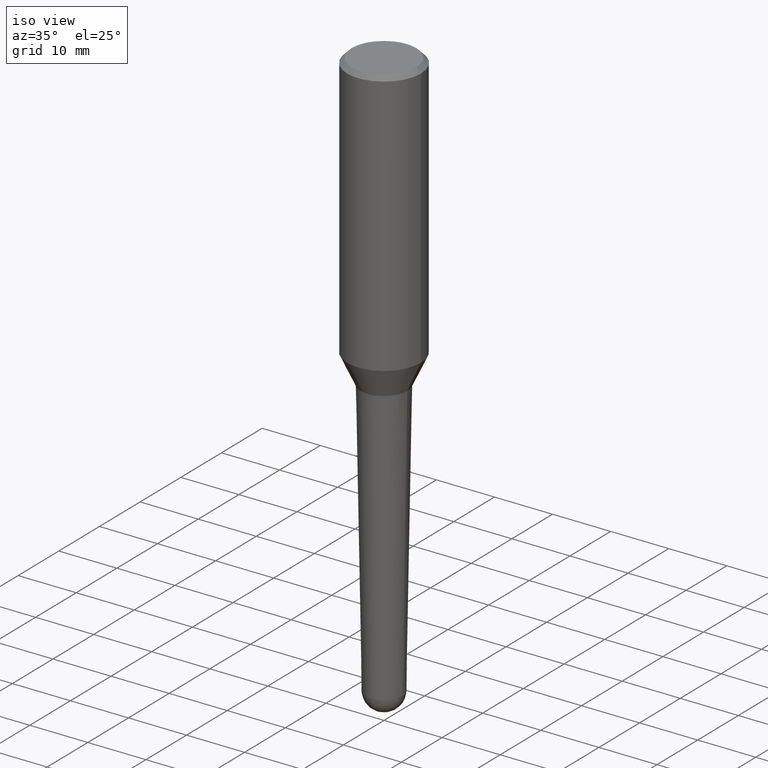
[diagram: clean part render]
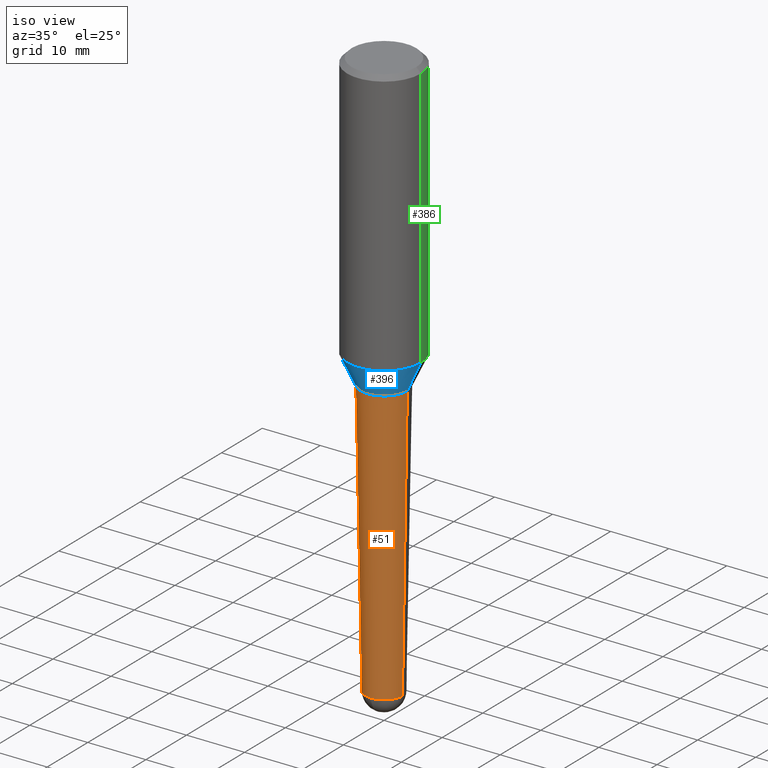
[diagram: same view with three faces highlighted in distinct colors, each labeled with its STEP entity id]
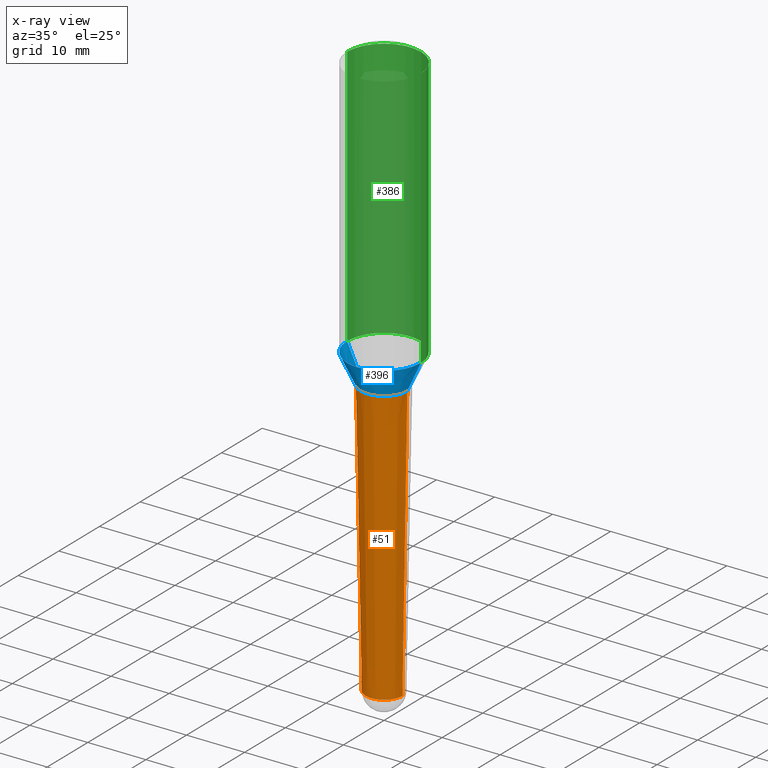
[diagram: x-ray of the same camera — body ghosted, the three highlighted faces saturated]
A machine part, iso view with three faces highlighted in distinct colors.
The next image is the same camera in x-ray (body ghosted, the three faces saturated) — at least one of them is partly hidden behind the body in this view.
Their STEP definitions:

[orange] entity #51 — the highlighted conical surface has half-angle 1 deg.
#9 = VERTEX_POINT ( 'NONE', #70 ) ;
#22 = CARTESIAN_POINT ( 'NONE',  ( -8.880431458247209991E-16, -0.1249809618945623979, -3.877181550804660315 ) ) ;
#30 = CIRCLE ( 'NONE', #453, 0.1577472877458967193 ) ;
#41 = DIRECTION ( 'NONE',  ( -2.445468806185136597E-29, 3.491481338843145583E-15, 1.000000000000000000 ) ) ;
#44 = ORIENTED_EDGE ( 'NONE', *, *, #168, .T. ) ;
#51 = ADVANCED_FACE ( 'NONE', ( #268 ), #307, .T. ) ;
#70 = CARTESIAN_POINT ( 'NONE',  ( -0.1249809618945493112, -9.255582334932912889E-15, -3.877181550804660759 ) ) ;
#90 = DIRECTION ( 'NONE',  ( -2.445468806185136597E-29, 3.491481338843145583E-15, 1.000000000000000000 ) ) ;
#94 = CIRCLE ( 'NONE', #424, 0.1249809618945493112 ) ;
#111 = VERTEX_POINT ( 'NONE', #347 ) ;
#118 = DIRECTION ( 'NONE',  ( -2.445468806185136597E-29, 3.491481338843145583E-15, 1.000000000000000000 ) ) ;
#123 = VECTOR ( 'NONE', #351, 39.37007874015748143 ) ;
#124 = DIRECTION ( 'NONE',  ( 1.000000000000000000, -6.982962677686266711E-15, 0.000000000000000000 ) ) ;
#130 = LINE ( 'NONE', #204, #333 ) ;
#132 = DIRECTION ( 'NONE',  ( 1.000000000000000000, -6.982962677686266711E-15, 0.000000000000000000 ) ) ;
#141 = EDGE_LOOP ( 'NONE', ( #324, #438, #253, #44, #430 ) ) ;
#166 = DIRECTION ( 'NONE',  ( -2.445468806185136597E-29, 3.491481338843145583E-15, 1.000000000000000000 ) ) ;
#168 = EDGE_CURVE ( 'NONE', #321, #111, #130, .T. ) ;
#171 = CARTESIAN_POINT ( 'NONE',  ( 0.1249809618945493112, -1.124717526239724726E-14, -3.877181550804660759 ) ) ;
#190 = CARTESIAN_POINT ( 'NONE',  ( 4.890937612370273194E-29, -6.982962677686291165E-15, -2.000000000000000000 ) ) ;
#204 = CARTESIAN_POINT ( 'NONE',  ( 0.1249809618945493112, -1.440984442427236798E-14, -3.877181550804660759 ) ) ;
#222 = VERTEX_POINT ( 'NONE', #445 ) ;
#225 = VERTEX_POINT ( 'NONE', #22 ) ;
#236 = AXIS2_PLACEMENT_3D ( 'NONE', #304, #118, #124 ) ;
#253 = ORIENTED_EDGE ( 'NONE', *, *, #318, .T. ) ;
#268 = FACE_OUTER_BOUND ( 'NONE', #141, .T. ) ;
#304 = CARTESIAN_POINT ( 'NONE',  ( 9.481526538409310003E-29, -1.353710703194140102E-14, -3.877181550804660759 ) ) ;
#307 = CONICAL_SURFACE ( 'NONE', #444, 0.1249809618945493112, 0.01745329251994322262 ) ;
#318 = EDGE_CURVE ( 'NONE', #225, #321, #94, .T. ) ;
#319 = LINE ( 'NONE', #391, #123 ) ;
#321 = VERTEX_POINT ( 'NONE', #171 ) ;
#324 = ORIENTED_EDGE ( 'NONE', *, *, #378, .F. ) ;
#333 = VECTOR ( 'NONE', #384, 39.37007874015748143 ) ;
#347 = CARTESIAN_POINT ( 'NONE',  ( 0.1577472877458967193, -8.084506100522123376E-15, -2.000000000000000000 ) ) ;
#351 = DIRECTION ( 'NONE',  ( -0.01745240643728343879, 3.614956375479315570E-15, 0.9998476951563912696 ) ) ;
#370 = DIRECTION ( 'NONE',  ( 1.000000000000000000, -6.982962677686264344E-15, 0.000000000000000000 ) ) ;
#376 = CARTESIAN_POINT ( 'NONE',  ( 9.481526538409310003E-29, -1.353710703194140102E-14, -3.877181550804660759 ) ) ;
#378 = EDGE_CURVE ( 'NONE', #9, #222, #319, .T. ) ;
#384 = DIRECTION ( 'NONE',  ( 0.01745240643728343879, 3.369080066536508461E-15, 0.9998476951563912696 ) ) ;
#391 = CARTESIAN_POINT ( 'NONE',  ( -0.1249809618945493112, -1.264906388611658269E-14, -3.877181550804660759 ) ) ;
#393 = CARTESIAN_POINT ( 'NONE',  ( 9.481526538409310003E-29, -1.353710703194140102E-14, -3.877181550804660759 ) ) ;
#400 = DIRECTION ( 'NONE',  ( 1.000000000000000000, -6.982962677686266711E-15, 0.000000000000000000 ) ) ;
#424 = AXIS2_PLACEMENT_3D ( 'NONE', #393, #41, #400 ) ;
#430 = ORIENTED_EDGE ( 'NONE', *, *, #434, .F. ) ;
#434 = EDGE_CURVE ( 'NONE', #222, #111, #30, .T. ) ;
#435 = CIRCLE ( 'NONE', #236, 0.1249809618945493112 ) ;
#438 = ORIENTED_EDGE ( 'NONE', *, *, #450, .T. ) ;
#444 = AXIS2_PLACEMENT_3D ( 'NONE', #376, #166, #132 ) ;
#445 = CARTESIAN_POINT ( 'NONE',  ( -0.1577472877458967193, -5.862100783749240719E-15, -2.000000000000000000 ) ) ;
#450 = EDGE_CURVE ( 'NONE', #9, #225, #435, .T. ) ;
#453 = AXIS2_PLACEMENT_3D ( 'NONE', #190, #90, #370 ) ;

[blue] entity #396 — the highlighted conical surface has half-angle 25 deg.
#3 = CARTESIAN_POINT ( 'NONE',  ( -0.1587472877458968035, -5.853249615722215052E-15, -1.999499999999999833 ) ) ;
#4 = ORIENTED_EDGE ( 'NONE', *, *, #215, .T. ) ;
#23 = VECTOR ( 'NONE', #267, 39.37007874015748143 ) ;
#45 = VERTEX_POINT ( 'NONE', #292 ) ;
#54 = CIRCLE ( 'NONE', #247, 0.1587472877458968035 ) ;
#60 = CARTESIAN_POINT ( 'NONE',  ( -0.1587472877458968035, -5.853249615722215052E-15, -1.999499999999999833 ) ) ;
#71 = CARTESIAN_POINT ( 'NONE',  ( 4.889714877967179832E-29, -6.981216937016868873E-15, -1.999499999999999833 ) ) ;
#98 = AXIS2_PLACEMENT_3D ( 'NONE', #71, #217, #179 ) ;
#106 = DIRECTION ( 'NONE',  ( -2.445468806185136597E-29, 3.491481338843145583E-15, 1.000000000000000000 ) ) ;
#107 = ORIENTED_EDGE ( 'NONE', *, *, #381, .F. ) ;
#127 = LINE ( 'NONE', #346, #23 ) ;
#133 = AXIS2_PLACEMENT_3D ( 'NONE', #138, #106, #249 ) ;
#137 = CARTESIAN_POINT ( 'NONE',  ( -0.2500000000000002220, -4.521604876772416489E-15, -1.803807927055801397 ) ) ;
#138 = CARTESIAN_POINT ( 'NONE',  ( 4.411156017964436703E-29, -6.297961716172668531E-15, -1.803807927055801397 ) ) ;
#169 = CARTESIAN_POINT ( 'NONE',  ( 0.1587472877458968035, -8.089743322530388676E-15, -1.999499999999999833 ) ) ;
#179 = DIRECTION ( 'NONE',  ( 1.000000000000000000, -6.982962677686266711E-15, 0.000000000000000000 ) ) ;
#180 = VERTEX_POINT ( 'NONE', #169 ) ;
#200 = CONICAL_SURFACE ( 'NONE', #98, 0.1587472877458968035, 0.4363323129985704485 ) ;
#215 = EDGE_CURVE ( 'NONE', #228, #180, #54, .T. ) ;
#217 = DIRECTION ( 'NONE',  ( -2.445468806185136597E-29, 3.491481338843145583E-15, 1.000000000000000000 ) ) ;
#218 = ORIENTED_EDGE ( 'NONE', *, *, #255, .F. ) ;
#223 = EDGE_CURVE ( 'NONE', #180, #45, #127, .T. ) ;
#228 = VERTEX_POINT ( 'NONE', #60 ) ;
#242 = DIRECTION ( 'NONE',  ( -2.445468806185136597E-29, 3.491481338843145583E-15, 1.000000000000000000 ) ) ;
#247 = AXIS2_PLACEMENT_3D ( 'NONE', #449, #242, #277 ) ;
#249 = DIRECTION ( 'NONE',  ( 1.000000000000000000, -6.982962677686268288E-15, 0.000000000000000000 ) ) ;
#251 = FACE_OUTER_BOUND ( 'NONE', #460, .T. ) ;
#255 = EDGE_CURVE ( 'NONE', #228, #364, #327, .T. ) ;
#267 = DIRECTION ( 'NONE',  ( 0.4226182617406886166, 2.132291770428340684E-16, 0.9063077870366550437 ) ) ;
#277 = DIRECTION ( 'NONE',  ( 1.000000000000000000, -6.982962677686266711E-15, 0.000000000000000000 ) ) ;
#288 = DIRECTION ( 'NONE',  ( -0.4226182617406886166, 6.167240084480777658E-15, 0.9063077870366550437 ) ) ;
#292 = CARTESIAN_POINT ( 'NONE',  ( 0.2500000000000002220, -8.043702385594237575E-15, -1.803807927055801397 ) ) ;
#311 = VECTOR ( 'NONE', #288, 39.37007874015748143 ) ;
#327 = LINE ( 'NONE', #3, #311 ) ;
#346 = CARTESIAN_POINT ( 'NONE',  ( 0.1587472877458968035, -8.089743322530388676E-15, -1.999499999999999833 ) ) ;
#349 = CIRCLE ( 'NONE', #133, 0.2500000000000002220 ) ;
#360 = ORIENTED_EDGE ( 'NONE', *, *, #223, .T. ) ;
#364 = VERTEX_POINT ( 'NONE', #137 ) ;
#381 = EDGE_CURVE ( 'NONE', #364, #45, #349, .T. ) ;
#396 = ADVANCED_FACE ( 'NONE', ( #251 ), #200, .T. ) ;
#449 = CARTESIAN_POINT ( 'NONE',  ( 4.889714877967179832E-29, -6.981216937016868873E-15, -1.999499999999999833 ) ) ;
#460 = EDGE_LOOP ( 'NONE', ( #218, #4, #360, #107 ) ) ;

[green] entity #386 — the highlighted cylindrical surface (partial cylindrical patch) has radius 6.35 mm, axis along (-0, 0, 1).
#34 = CARTESIAN_POINT ( 'NONE',  ( -0.2500000000000000000, -1.427178414605506576E-15, -0.03125000000000005551 ) ) ;
#38 = AXIS2_PLACEMENT_3D ( 'NONE', #344, #240, #452 ) ;
#45 = VERTEX_POINT ( 'NONE', #292 ) ;
#68 = FACE_OUTER_BOUND ( 'NONE', #117, .T. ) ;
#78 = CARTESIAN_POINT ( 'NONE',  ( 0.2500000000000001110, -1.745740669421565494E-15, 5.931196827434418047E-16 ) ) ;
#83 = VERTEX_POINT ( 'NONE', #135 ) ;
#87 = CIRCLE ( 'NONE', #38, 0.2500000000000002220 ) ;
#108 = DIRECTION ( 'NONE',  ( 1.000000000000000000, -6.982962677686267499E-15, 4.852736867747363965E-29 ) ) ;
#117 = EDGE_LOOP ( 'NONE', ( #332, #184, #259, #367 ) ) ;
#135 = CARTESIAN_POINT ( 'NONE',  ( 0.2500000000000000000, -1.854849461260415384E-15, -0.03125000000000005551 ) ) ;
#137 = CARTESIAN_POINT ( 'NONE',  ( -0.2500000000000002220, -4.521604876772416489E-15, -1.803807927055801397 ) ) ;
#184 = ORIENTED_EDGE ( 'NONE', *, *, #441, .T. ) ;
#187 = EDGE_CURVE ( 'NONE', #45, #364, #87, .T. ) ;
#192 = VECTOR ( 'NONE', #331, 39.37007874015748143 ) ;
#214 = CYLINDRICAL_SURFACE ( 'NONE', #375, 0.2500000000000001110 ) ;
#229 = LINE ( 'NONE', #299, #192 ) ;
#233 = CARTESIAN_POINT ( 'NONE',  ( 7.642090019328565002E-31, -1.091087918388484967E-16, -0.03125000000000005551 ) ) ;
#240 = DIRECTION ( 'NONE',  ( -2.445468806185136597E-29, 3.491481338843145583E-15, 1.000000000000000000 ) ) ;
#259 = ORIENTED_EDGE ( 'NONE', *, *, #455, .F. ) ;
#262 = DIRECTION ( 'NONE',  ( -2.445468806185136597E-29, 3.491481338843145583E-15, 1.000000000000000000 ) ) ;
#272 = EDGE_CURVE ( 'NONE', #45, #83, #456, .T. ) ;
#292 = CARTESIAN_POINT ( 'NONE',  ( 0.2500000000000002220, -8.043702385594237575E-15, -1.803807927055801397 ) ) ;
#293 = CIRCLE ( 'NONE', #412, 0.2500000000000000000 ) ;
#299 = CARTESIAN_POINT ( 'NONE',  ( -0.2500000000000001110, 1.776356839400253620E-15, 5.931196827434174486E-16 ) ) ;
#315 = VECTOR ( 'NONE', #323, 39.37007874015748143 ) ;
#323 = DIRECTION ( 'NONE',  ( -2.445468806185136877E-29, 3.491481338843145188E-15, 1.000000000000000000 ) ) ;
#331 = DIRECTION ( 'NONE',  ( -2.445468806185136877E-29, 3.491481338843145188E-15, 1.000000000000000000 ) ) ;
#332 = ORIENTED_EDGE ( 'NONE', *, *, #187, .T. ) ;
#344 = CARTESIAN_POINT ( 'NONE',  ( 4.411156017964436703E-29, -6.297961716172668531E-15, -1.803807927055801397 ) ) ;
#352 = CARTESIAN_POINT ( 'NONE',  ( -1.450455682483482035E-44, 2.070866303999251778E-30, 5.931196827434296760E-16 ) ) ;
#364 = VERTEX_POINT ( 'NONE', #137 ) ;
#367 = ORIENTED_EDGE ( 'NONE', *, *, #272, .F. ) ;
#375 = AXIS2_PLACEMENT_3D ( 'NONE', #352, #427, #108 ) ;
#386 = ADVANCED_FACE ( 'NONE', ( #68 ), #214, .T. ) ;
#390 = VERTEX_POINT ( 'NONE', #34 ) ;
#408 = DIRECTION ( 'NONE',  ( 1.000000000000000000, -6.982962677686266711E-15, 0.000000000000000000 ) ) ;
#412 = AXIS2_PLACEMENT_3D ( 'NONE', #233, #262, #408 ) ;
#427 = DIRECTION ( 'NONE',  ( -2.445468806185136597E-29, 3.491481338843145583E-15, 1.000000000000000000 ) ) ;
#441 = EDGE_CURVE ( 'NONE', #364, #390, #229, .T. ) ;
#452 = DIRECTION ( 'NONE',  ( 1.000000000000000000, -6.982962677686268288E-15, 0.000000000000000000 ) ) ;
#455 = EDGE_CURVE ( 'NONE', #83, #390, #293, .T. ) ;
#456 = LINE ( 'NONE', #78, #315 ) ;